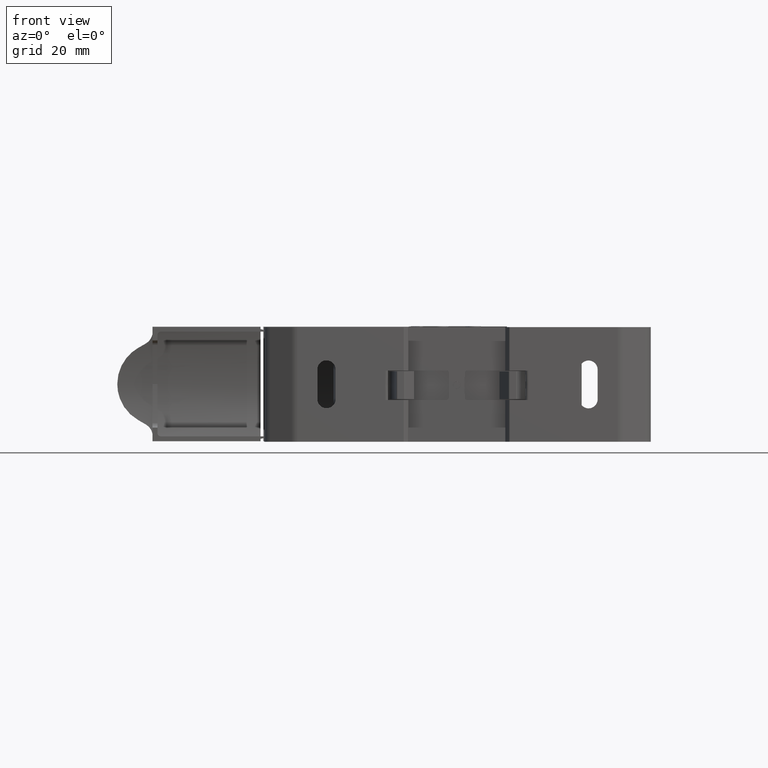
[diagram: clean part render]
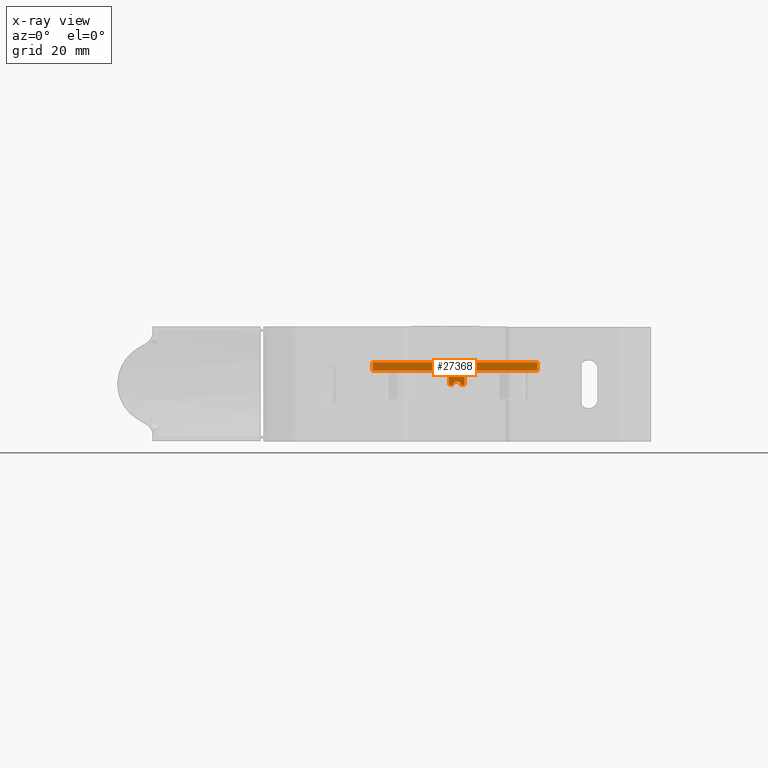
[diagram: x-ray — body ghosted, one internal face saturated and labeled with its STEP entity id]
A machine part, front view, then the same camera in x-ray: the body is ghosted and one INTERNAL B-rep face — a face not visible from any outside direction — is saturated and labeled: STEP entity #27368.
In plain terms, the highlighted planar face has unit normal (0, -0.9998, 0.0175).
Its self-contained STEP definition (entity closure, byte-faithful):
#813 = VERTEX_POINT ( 'NONE', #40522 ) ;
#869 = VERTEX_POINT ( 'NONE', #40510 ) ;
#872 = VERTEX_POINT ( 'NONE', #40565 ) ;
#881 = VERTEX_POINT ( 'NONE', #40543 ) ;
#916 = VERTEX_POINT ( 'NONE', #40527 ) ;
#942 = VERTEX_POINT ( 'NONE', #40507 ) ;
#985 = VERTEX_POINT ( 'NONE', #40509 ) ;
#998 = VERTEX_POINT ( 'NONE', #40517 ) ;
#1604 = VERTEX_POINT ( 'NONE', #40636 ) ;
#1647 = VERTEX_POINT ( 'NONE', #40691 ) ;
#1692 = VERTEX_POINT ( 'NONE', #40687 ) ;
#1831 = VERTEX_POINT ( 'NONE', #38840 ) ;
#2328 = PLANE ( 'NONE',  #10525 ) ;
#2358 = DIRECTION ( 'NONE',  ( 1.066167891987550300E-015, -0.9998476951563904900, 0.01745240643732672400 ) ) ;
#2363 = DIRECTION ( 'NONE',  ( 0.0000000000000000000, -0.01745240643732672000, -0.9998476951563903800 ) ) ;
#2369 = CARTESIAN_POINT ( 'NONE',  ( 46.26791074929590100, 228.5238134255148700, 8.483463628506886100 ) ) ;
#2377 = FACE_OUTER_BOUND ( 'NONE', #21154, .T. ) ;
#4058 = CARTESIAN_POINT ( 'NONE',  ( 0.6679598231219984200, 228.6057912409843000, 13.17996959991769600 ) ) ;
#7981 = VECTOR ( 'NONE', #29817, 1000.000000000000000 ) ;
#7983 = VECTOR ( 'NONE', #29913, 1000.000000000000000 ) ;
#8040 = VECTOR ( 'NONE', #32674, 1000.000000000000000 ) ;
#8071 = VECTOR ( 'NONE', #28716, 1000.000000000000000 ) ;
#8112 = VECTOR ( 'NONE', #32754, 1000.000000000000100 ) ;
#8116 = VECTOR ( 'NONE', #32759, 1000.000000000000000 ) ;
#8129 = VECTOR ( 'NONE', #32745, 1000.000000000000100 ) ;
#10525 = AXIS2_PLACEMENT_3D ( 'NONE', #2369, #2358, #2363 ) ;
#12039 = EDGE_CURVE ( 'NONE', #998, #1647, #29779, .T. ) ;
#12051 = EDGE_CURVE ( 'NONE', #37870, #813, #18744, .T. ) ;
#12052 = EDGE_CURVE ( 'NONE', #985, #869, #29885, .T. ) ;
#12058 = EDGE_CURVE ( 'NONE', #942, #916, #18702, .T. ) ;
#12062 = EDGE_CURVE ( 'NONE', #872, #869, #18756, .T. ) ;
#12071 = EDGE_CURVE ( 'NONE', #1692, #881, #28704, .T. ) ;
#12079 = EDGE_CURVE ( 'NONE', #872, #998, #18734, .T. ) ;
#12086 = EDGE_CURVE ( 'NONE', #881, #916, #18724, .T. ) ;
#12118 = EDGE_CURVE ( 'NONE', #813, #985, #18752, .T. ) ;
#12142 = EDGE_CURVE ( 'NONE', #942, #37870, #32587, .T. ) ;
#12174 = EDGE_CURVE ( 'NONE', #1831, #1647, #32744, .T. ) ;
#12175 = EDGE_CURVE ( 'NONE', #1604, #1831, #32723, .T. ) ;
#12177 = EDGE_CURVE ( 'NONE', #1692, #1604, #32772, .T. ) ;
#18702 = B_SPLINE_CURVE_WITH_KNOTS ( 'NONE', 3,
 ( #29953, #29955, #29942, #29932 ),
 .UNSPECIFIED., .F., .F.,
 ( 4, 4 ),
 ( 0.0000000000000000000, 1.000000000000000000 ),
 .UNSPECIFIED. ) ;
#18724 = B_SPLINE_CURVE_WITH_KNOTS ( 'NONE', 3,
 ( #32416, #32404, #32411, #32413, #32393, #32381, #32385, #32388, #32394, #32405, #32367, #32389, #32374, #32368, #32406, #32402, #32378, #32395, #32371 ),
 .UNSPECIFIED., .F., .F.,
 ( 4, 1, 1, 2, 2, 2, 2, 1, 2, 2, 4 ),
 ( 0.0000000000000000000, 0.1249999999999842600, 0.1874999999999783200, 0.2187499999999751300, 0.2499999999999719100, 0.3749999999999724700, 0.4999999999999730200, 0.6249999999999735800, 0.6874999999999786800, 0.7499999999999837900, 1.000000000000000000 ),
 .UNSPECIFIED. ) ;
#18734 = B_SPLINE_CURVE_WITH_KNOTS ( 'NONE', 3,
 ( #32333, #32344, #32363, #32364, #32342, #32324, #32346, #32327, #32340, #32351, #32334, #32309, #32352, #32366, #32353, #32311, #32354, #32335, #32355 ),
 .UNSPECIFIED., .F., .F.,
 ( 4, 1, 1, 2, 2, 2, 2, 1, 2, 2, 4 ),
 ( 0.0000000000000000000, 0.1249999999999951700, 0.1874999999999968400, 0.2187499999999976400, 0.2499999999999985000, 0.3750000000000009400, 0.5000000000000034400, 0.6250000000000058800, 0.6875000000000057700, 0.7500000000000055500, 1.000000000000000000 ),
 .UNSPECIFIED. ) ;
#18744 = B_SPLINE_CURVE_WITH_KNOTS ( 'NONE', 3,
 ( #29915, #29905, #29888, #29889, #29886, #29899, #29917, #29918, #29895, #29880, #29900, #29883, #29891, #29901, #29890, #29864, #29902, #29923, #29903, #29869, #29904 ),
 .UNSPECIFIED., .F., .F.,
 ( 4, 1, 1, 1, 2, 2, 2, 2, 1, 1, 2, 2, 4 ),
 ( 0.0000000000000000000, 0.1250000000000055800, 0.1875000000000083800, 0.2187500000000101000, 0.2343750000000097700, 0.2500000000000094400, 0.3750000000000087700, 0.5000000000000082200, 0.6250000000000075500, 0.6875000000000065500, 0.7187500000000060000, 0.7500000000000053300, 1.000000000000000000 ),
 .UNSPECIFIED. ) ;
#18752 = B_SPLINE_CURVE_WITH_KNOTS ( 'NONE', 3,
 ( #32519, #32488, #32546, #32535, #32539, #32541, #32545, #32557, #32522, #32542, #32530, #32573, #32559, #32553, #32532, #32548, #32526, #32525, #32527, #32565, #32563 ),
 .UNSPECIFIED., .F., .F.,
 ( 4, 1, 1, 1, 2, 2, 2, 2, 1, 1, 2, 2, 4 ),
 ( 0.0000000000000000000, 0.1250000000000056600, 0.1875000000000084900, 0.2187500000000096600, 0.2343750000000099600, 0.2500000000000102700, 0.3750000000000112100, 0.5000000000000121000, 0.6250000000000131000, 0.6875000000000134300, 0.7187500000000136600, 0.7500000000000138800, 1.000000000000000000 ),
 .UNSPECIFIED. ) ;
#18756 = B_SPLINE_CURVE_WITH_KNOTS ( 'NONE', 3,
 ( #29947, #29949, #29950, #29934 ),
 .UNSPECIFIED., .F., .F.,
 ( 4, 4 ),
 ( 0.0000000000000000000, 1.000000000000000000 ),
 .UNSPECIFIED. ) ;
#21154 = EDGE_LOOP ( 'NONE', ( #30115, #30166, #30179, #30152, #30136, #30205, #30200, #30206, #30202, #30154, #30139, #30181, #30207 ) ) ;
#27368 = ADVANCED_FACE ( 'NONE', ( #2377 ), #2328, .F. ) ;
#28704 = LINE ( 'NONE', #28740, #8071 ) ;
#28716 = DIRECTION ( 'NONE',  ( -1.000000000000000000, -4.760182186460370200E-025, 6.109002192999918800E-014 ) ) ;
#28740 = CARTESIAN_POINT ( 'NONE',  ( -4.432089250703468200, 228.6983030863017600, 18.47996959992694600 ) ) ;
#29764 = CARTESIAN_POINT ( 'NONE',  ( -4.432089250703468200, 228.6983030863018500, 18.47996959992694600 ) ) ;
#29779 = LINE ( 'NONE', #29764, #7981 ) ;
#29817 = DIRECTION ( 'NONE',  ( -1.000000000000000000, -4.760182186460370200E-025, 6.109002192999918800E-014 ) ) ;
#29864 = CARTESIAN_POINT ( 'NONE',  ( -0.1006108318131682900, 228.6270647378201200, 14.39872734878966100 ) ) ;
#29869 = CARTESIAN_POINT ( 'NONE',  ( -0.5098278256320999400, 228.6293466491287600, 14.52945796010669500 ) ) ;
#29880 = CARTESIAN_POINT ( 'NONE',  ( 0.4960558837720046000, 228.6174145040851600, 13.84586582838637400 ) ) ;
#29883 = CARTESIAN_POINT ( 'NONE',  ( 0.3389777672837823200, 228.6212968683361700, 14.06828632736336400 ) ) ;
#29885 = LINE ( 'NONE', #29911, #7983 ) ;
#29886 = CARTESIAN_POINT ( 'NONE',  ( 0.5988220409000986100, 228.6132547886820100, 13.60755589254378600 ) ) ;
#29888 = CARTESIAN_POINT ( 'NONE',  ( 0.6555698669388233500, 228.6095301325726700, 13.39417048695425500 ) ) ;
#29889 = CARTESIAN_POINT ( 'NONE',  ( 0.6211285543894739000, 228.6120288319014500, 13.53732087562798700 ) ) ;
#29890 = CARTESIAN_POINT ( 'NONE',  ( -0.03880651991385743900, 228.6265411573675100, 14.36873144474970400 ) ) ;
#29891 = CARTESIAN_POINT ( 'NONE',  ( 0.2060320409199151400, 228.6236106219254500, 14.20084118171437700 ) ) ;
#29895 = CARTESIAN_POINT ( 'NONE',  ( 0.5384466884834393500, 228.6159875752965100, 13.76411713283424700 ) ) ;
#29899 = CARTESIAN_POINT ( 'NONE',  ( 0.5881722800014944600, 228.6137751859699600, 13.63736943320318700 ) ) ;
#29900 = CARTESIAN_POINT ( 'NONE',  ( 0.3958491998278708100, 228.6200773690599100, 13.99842126061748400 ) ) ;
#29901 = CARTESIAN_POINT ( 'NONE',  ( 0.09896910644680743900, 228.6251341973367600, 14.28812675857506400 ) ) ;
#29902 = CARTESIAN_POINT ( 'NONE',  ( -0.1424265097210508100, 228.6273961464734700, 14.41771373782441400 ) ) ;
#29903 = CARTESIAN_POINT ( 'NONE',  ( -0.3441852063292563100, 228.6287951517351200, 14.49786269558478800 ) ) ;
#29904 = CARTESIAN_POINT ( 'NONE',  ( -0.6820892504999787100, 228.6293555798352500, 14.52996959993708100 ) ) ;
#29905 = CARTESIAN_POINT ( 'NONE',  ( 0.6676537672450307800, 228.6073081861174800, 13.26687525979027900 ) ) ;
#29911 = CARTESIAN_POINT ( 'NONE',  ( -42.93198438356954900, 228.6057912373906000, 13.17996959989932100 ) ) ;
#29913 = DIRECTION ( 'NONE',  ( -1.000000000000000000, -0.0000000000000000000, -0.0000000000000000000 ) ) ;
#29915 = CARTESIAN_POINT ( 'NONE',  ( 0.6679598231219984200, 228.6057912409843000, 13.17996959991769600 ) ) ;
#29917 = CARTESIAN_POINT ( 'NONE',  ( 0.5808302557255400300, 228.6141210035484100, 13.65718130900368800 ) ) ;
#29918 = CARTESIAN_POINT ( 'NONE',  ( 0.5774597393656011300, 228.6142748470703300, 13.66599499847195700 ) ) ;
#29923 = CARTESIAN_POINT ( 'NONE',  ( -0.1652834158742226800, 228.6275643296441700, 14.42734894521967300 ) ) ;
#29932 = CARTESIAN_POINT ( 'NONE',  ( 2.227836302813828600, 228.6857296558368900, 17.75963825103551100 ) ) ;
#29934 = CARTESIAN_POINT ( 'NONE',  ( -3.432040190930232300, 228.6057912402463300, 13.17996458747381000 ) ) ;
#29942 = CARTESIAN_POINT ( 'NONE',  ( 2.174527844345140300, 228.6590835168900600, 16.23308373220791300 ) ) ;
#29947 = CARTESIAN_POINT ( 'NONE',  ( -3.592014803813230000, 228.6857296558369500, 17.75963825103600200 ) ) ;
#29949 = CARTESIAN_POINT ( 'NONE',  ( -3.538706226905982800, 228.6590835173483400, 16.23308034056453800 ) ) ;
#29950 = CARTESIAN_POINT ( 'NONE',  ( -3.485397649998754700, 228.6324373788597800, 14.70652243009307000 ) ) ;
#29953 = CARTESIAN_POINT ( 'NONE',  ( 2.067959822951705600, 228.6057912389883600, 13.17997469108849500 ) ) ;
#29955 = CARTESIAN_POINT ( 'NONE',  ( 2.121219385876493800, 228.6324373779432300, 14.70652921338030900 ) ) ;
#30115 = ORIENTED_EDGE ( 'NONE', *, *, #12058, .F. ) ;
#30136 = ORIENTED_EDGE ( 'NONE', *, *, #12052, .T. ) ;
#30139 = ORIENTED_EDGE ( 'NONE', *, *, #12177, .F. ) ;
#30152 = ORIENTED_EDGE ( 'NONE', *, *, #12118, .T. ) ;
#30154 = ORIENTED_EDGE ( 'NONE', *, *, #12175, .F. ) ;
#30166 = ORIENTED_EDGE ( 'NONE', *, *, #12142, .T. ) ;
#30179 = ORIENTED_EDGE ( 'NONE', *, *, #12051, .T. ) ;
#30181 = ORIENTED_EDGE ( 'NONE', *, *, #12071, .T. ) ;
#30200 = ORIENTED_EDGE ( 'NONE', *, *, #12079, .T. ) ;
#30202 = ORIENTED_EDGE ( 'NONE', *, *, #12174, .F. ) ;
#30205 = ORIENTED_EDGE ( 'NONE', *, *, #12062, .F. ) ;
#30206 = ORIENTED_EDGE ( 'NONE', *, *, #12039, .T. ) ;
#30207 = ORIENTED_EDGE ( 'NONE', *, *, #12086, .T. ) ;
#32309 = CARTESIAN_POINT ( 'NONE',  ( -3.827903429361567200, 228.6948451261808900, 18.28186319729064400 ) ) ;
#32311 = CARTESIAN_POINT ( 'NONE',  ( -3.999462169604507200, 228.6969302770472700, 18.40132141041156200 ) ) ;
#32324 = CARTESIAN_POINT ( 'NONE',  ( -3.637975651830460200, 228.6898130981854000, 17.99357850650047300 ) ) ;
#32327 = CARTESIAN_POINT ( 'NONE',  ( -3.663738644350922300, 228.6909328593698400, 18.05772958179217700 ) ) ;
#32333 = CARTESIAN_POINT ( 'NONE',  ( -3.592014803813230000, 228.6857296558369500, 17.75963825103600200 ) ) ;
#32334 = CARTESIAN_POINT ( 'NONE',  ( -3.762362509909147800, 228.6936348497168900, 18.21252650509950800 ) ) ;
#32335 = CARTESIAN_POINT ( 'NONE',  ( -4.181250702734241800, 228.6981459235955500, 18.47096575451880800 ) ) ;
#32340 = CARTESIAN_POINT ( 'NONE',  ( -3.685144033541831700, 228.6916584325658400, 18.09929764235219100 ) ) ;
#32342 = CARTESIAN_POINT ( 'NONE',  ( -3.630808067389224000, 228.6894605399858200, 17.97338046077487300 ) ) ;
#32344 = CARTESIAN_POINT ( 'NONE',  ( -3.593823275234223000, 228.6865129825801300, 17.80451501009971300 ) ) ;
#32346 = CARTESIAN_POINT ( 'NONE',  ( -3.641333225599761500, 228.6899686183388700, 18.00248825012835500 ) ) ;
#32351 = CARTESIAN_POINT ( 'NONE',  ( -3.734916920303621000, 228.6930179397005000, 18.17718375393018300 ) ) ;
#32352 = CARTESIAN_POINT ( 'NONE',  ( -3.880482964565713300, 228.6956555707279200, 18.32829353428945000 ) ) ;
#32353 = CARTESIAN_POINT ( 'NONE',  ( -3.977816419147953500, 228.6967307337029900, 18.38988957987789200 ) ) ;
#32354 = CARTESIAN_POINT ( 'NONE',  ( -4.097883786138070600, 228.6977424664723900, 18.44785171141422400 ) ) ;
#32355 = CARTESIAN_POINT ( 'NONE',  ( -4.269247242698821100, 228.6983030863017900, 18.47996959992604700 ) ) ;
#32363 = CARTESIAN_POINT ( 'NONE',  ( -3.601904566992067700, 228.6876544539761400, 17.86990986257563200 ) ) ;
#32364 = CARTESIAN_POINT ( 'NONE',  ( -3.620727763805661400, 228.6889275128467600, 17.94284335642150200 ) ) ;
#32366 = CARTESIAN_POINT ( 'NONE',  ( -3.938198268192092400, 228.6963201210732000, 18.36636559807142900 ) ) ;
#32367 = CARTESIAN_POINT ( 'NONE',  ( 2.463537641251086500, 228.6948481985611700, 18.28203921383319400 ) ) ;
#32368 = CARTESIAN_POINT ( 'NONE',  ( 2.320825692415782600, 228.6916193452430000, 18.09705833112090500 ) ) ;
#32371 = CARTESIAN_POINT ( 'NONE',  ( 2.227836302813828600, 228.6857296558368900, 17.75963825103551100 ) ) ;
#32374 = CARTESIAN_POINT ( 'NONE',  ( 2.355269084024414400, 228.6926658042020800, 18.15700992473590200 ) ) ;
#32378 = CARTESIAN_POINT ( 'NONE',  ( 2.249333948820169600, 228.6887496760682800, 17.93265509421540200 ) ) ;
#32381 = CARTESIAN_POINT ( 'NONE',  ( 2.674405101337114800, 228.6972507453741100, 18.41968102856323200 ) ) ;
#32385 = CARTESIAN_POINT ( 'NONE',  ( 2.665719136580901900, 228.6971826668259400, 18.41578081115046200 ) ) ;
#32388 = CARTESIAN_POINT ( 'NONE',  ( 2.611963413237842000, 228.6967329073574700, 18.39001410845727200 ) ) ;
#32389 = CARTESIAN_POINT ( 'NONE',  ( 2.398371296021283100, 228.6936317773366900, 18.21235048855644600 ) ) ;
#32393 = CARTESIAN_POINT ( 'NONE',  ( 2.694123134708080100, 228.6973973425838000, 18.42807957707964000 ) ) ;
#32394 = CARTESIAN_POINT ( 'NONE',  ( 2.571793330294271500, 228.6963152763215100, 18.36608804242858300 ) ) ;
#32395 = CARTESIAN_POINT ( 'NONE',  ( 2.231400780307886600, 228.6872724058322900, 17.84802233907365100 ) ) ;
#32402 = CARTESIAN_POINT ( 'NONE',  ( 2.289711273233302300, 228.6905144141643400, 18.03375687202211700 ) ) ;
#32404 = CARTESIAN_POINT ( 'NONE',  ( 2.860388761375215200, 228.6982233122170400, 18.47539934568220900 ) ) ;
#32405 = CARTESIAN_POINT ( 'NONE',  ( 2.497122155868901000, 228.6953643673270200, 18.31161050262291200 ) ) ;
#32406 = CARTESIAN_POINT ( 'NONE',  ( 2.299787613651858000, 228.6909038201981200, 18.05606592875658500 ) ) ;
#32411 = CARTESIAN_POINT ( 'NONE',  ( 2.795616182339631300, 228.6980121852324400, 18.46330388883318800 ) ) ;
#32413 = CARTESIAN_POINT ( 'NONE',  ( 2.723981108710657600, 228.6976058051660600, 18.44002239041923000 ) ) ;
#32416 = CARTESIAN_POINT ( 'NONE',  ( 2.905068741778249000, 228.6983030863017600, 18.47996959992815400 ) ) ;
#32488 = CARTESIAN_POINT ( 'NONE',  ( -0.7689129468681708000, 228.6293510920415900, 14.52971249441434200 ) ) ;
#32519 = CARTESIAN_POINT ( 'NONE',  ( -0.6820892504999787100, 228.6293555798352500, 14.52996959993708100 ) ) ;
#32522 = CARTESIAN_POINT ( 'NONE',  ( -1.266236800622919200, 228.6270957760466400, 14.40050552759387200 ) ) ;
#32525 = CARTESIAN_POINT ( 'NONE',  ( -1.929466585570122100, 228.6148122108215500, 13.69678054716060200 ) ) ;
#32526 = CARTESIAN_POINT ( 'NONE',  ( -1.919833406699051900, 228.6152110899918200, 13.71963231952128500 ) ) ;
#32527 = CARTESIAN_POINT ( 'NONE',  ( -1.999998427847887100, 228.6116886652867800, 13.51783274332645300 ) ) ;
#32530 = CARTESIAN_POINT ( 'NONE',  ( -1.500540937019006400, 228.6246067275247400, 14.25790803327494600 ) ) ;
#32532 = CARTESIAN_POINT ( 'NONE',  ( -1.870851146585335500, 228.6170197829758600, 13.82325227117778800 ) ) ;
#32535 = CARTESIAN_POINT ( 'NONE',  ( -1.039332949084282600, 228.6285396778092700, 14.48322660417195400 ) ) ;
#32539 = CARTESIAN_POINT ( 'NONE',  ( -1.109612789793563500, 228.6281500518930200, 14.46090495038367200 ) ) ;
#32541 = CARTESIAN_POINT ( 'NONE',  ( -1.139451303710069500, 228.6279639963252400, 14.45024583404526600 ) ) ;
#32542 = CARTESIAN_POINT ( 'NONE',  ( -1.347985504787894800, 228.6263558416991700, 14.35811471721908300 ) ) ;
#32545 = CARTESIAN_POINT ( 'NONE',  ( -1.159281109028632400, 228.6278357208285000, 14.44289693575604100 ) ) ;
#32546 = CARTESIAN_POINT ( 'NONE',  ( -0.8961467013828792200, 228.6291409146738800, 14.51767144107658000 ) ) ;
#32548 = CARTESIAN_POINT ( 'NONE',  ( -1.900847032313629100, 228.6159409850686800, 13.76144798047330800 ) ) ;
#32553 = CARTESIAN_POINT ( 'NONE',  ( -1.790246477501580300, 228.6194246651341500, 13.96102787775662300 ) ) ;
#32557 = CARTESIAN_POINT ( 'NONE',  ( -1.168114646881723200, 228.6277767516052400, 14.43951859121858800 ) ) ;
#32559 = CARTESIAN_POINT ( 'NONE',  ( -1.702960871342240200, 228.6212934561987700, 14.06809084614144300 ) ) ;
#32563 = CARTESIAN_POINT ( 'NONE',  ( -2.032040176877997000, 228.6057912391873100, 13.17996959993086600 ) ) ;
#32565 = CARTESIAN_POINT ( 'NONE',  ( -2.031577334495782600, 228.6087973626116300, 13.35219012400403200 ) ) ;
#32573 = CARTESIAN_POINT ( 'NONE',  ( -1.570405938861469500, 228.6236140340628500, 14.20103666293652500 ) ) ;
#32587 = LINE ( 'NONE', #32635, #8040 ) ;
#32635 = CARTESIAN_POINT ( 'NONE',  ( -42.93198438356954900, 228.6057911780936800, 13.17997299701705000 ) ) ;
#32674 = DIRECTION ( 'NONE',  ( -1.000000000000000000, -0.0000000000000000000, -0.0000000000000000000 ) ) ;
#32723 = LINE ( 'NONE', #32738, #8116 ) ;
#32733 = CARTESIAN_POINT ( 'NONE',  ( -31.04284253209271700, 228.5238134255147900, 8.483463628506887800 ) ) ;
#32738 = CARTESIAN_POINT ( 'NONE',  ( 46.26791074929590100, 228.7506682810836500, 21.47996959976172700 ) ) ;
#32744 = LINE ( 'NONE', #32733, #8112 ) ;
#32745 = DIRECTION ( 'NONE',  ( -0.0000000000000000000, 0.01745240643732672000, 0.9998476951563903800 ) ) ;
#32754 = DIRECTION ( 'NONE',  ( 0.0000000000000000000, -0.01745240643732672000, -0.9998476951563903800 ) ) ;
#32759 = DIRECTION ( 'NONE',  ( -1.000000000000000000, -1.066005509453499600E-015, 1.860719538139458600E-017 ) ) ;
#32761 = CARTESIAN_POINT ( 'NONE',  ( 28.49791972399198400, 228.5238134255148500, 8.483463628506886100 ) ) ;
#32772 = LINE ( 'NONE', #32761, #8129 ) ;
#37870 = VERTEX_POINT ( 'NONE', #4058 ) ;
#38840 = CARTESIAN_POINT ( 'NONE',  ( -31.04284253209271700, 228.7506682805514800, 21.47996959976172700 ) ) ;
#40507 = CARTESIAN_POINT ( 'NONE',  ( 2.067959822951705600, 228.6057912389883600, 13.17997469108849500 ) ) ;
#40509 = CARTESIAN_POINT ( 'NONE',  ( -2.032040176877997000, 228.6057912391873100, 13.17996959993086600 ) ) ;
#40510 = CARTESIAN_POINT ( 'NONE',  ( -3.432040190930232300, 228.6057912402463300, 13.17996458747381000 ) ) ;
#40517 = CARTESIAN_POINT ( 'NONE',  ( -4.269247242698821100, 228.6983030863017900, 18.47996959992604700 ) ) ;
#40522 = CARTESIAN_POINT ( 'NONE',  ( -0.6820892504999787100, 228.6293555798352500, 14.52996959993708100 ) ) ;
#40527 = CARTESIAN_POINT ( 'NONE',  ( 2.227836302813828600, 228.6857296558368900, 17.75963825103551100 ) ) ;
#40543 = CARTESIAN_POINT ( 'NONE',  ( 2.905068741778249000, 228.6983030863017600, 18.47996959992815400 ) ) ;
#40565 = CARTESIAN_POINT ( 'NONE',  ( -3.592014803813230000, 228.6857296558369500, 17.75963825103600200 ) ) ;
#40636 = CARTESIAN_POINT ( 'NONE',  ( 28.49791972399197000, 228.7506682794870900, 21.47996953878607600 ) ) ;
#40687 = CARTESIAN_POINT ( 'NONE',  ( 28.49791972399197700, 228.6983030863017600, 18.47996959992493900 ) ) ;
#40691 = CARTESIAN_POINT ( 'NONE',  ( -31.04284253209269900, 228.6983030863017600, 18.47996959992598000 ) ) ;